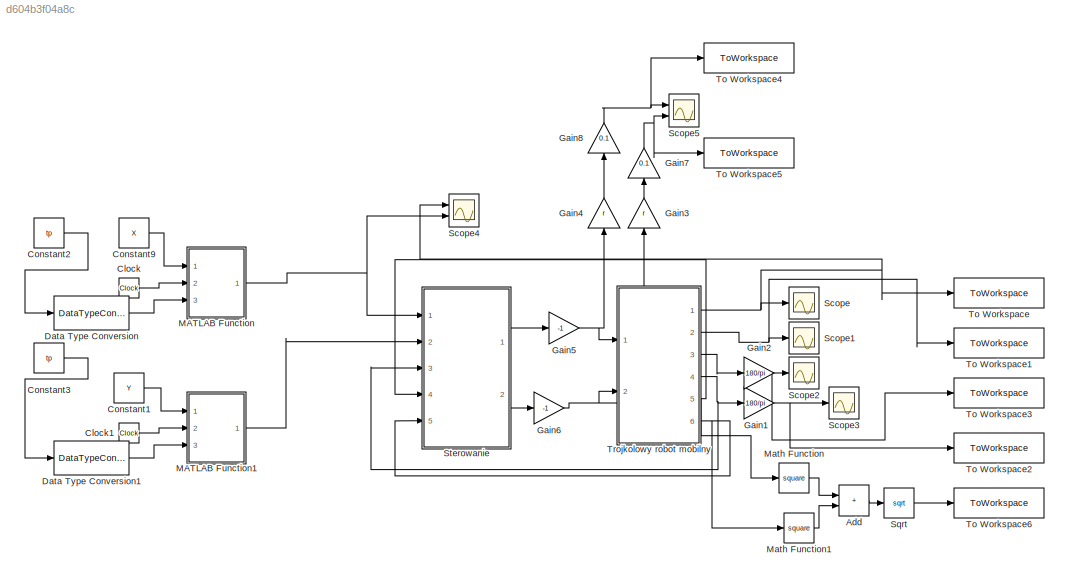
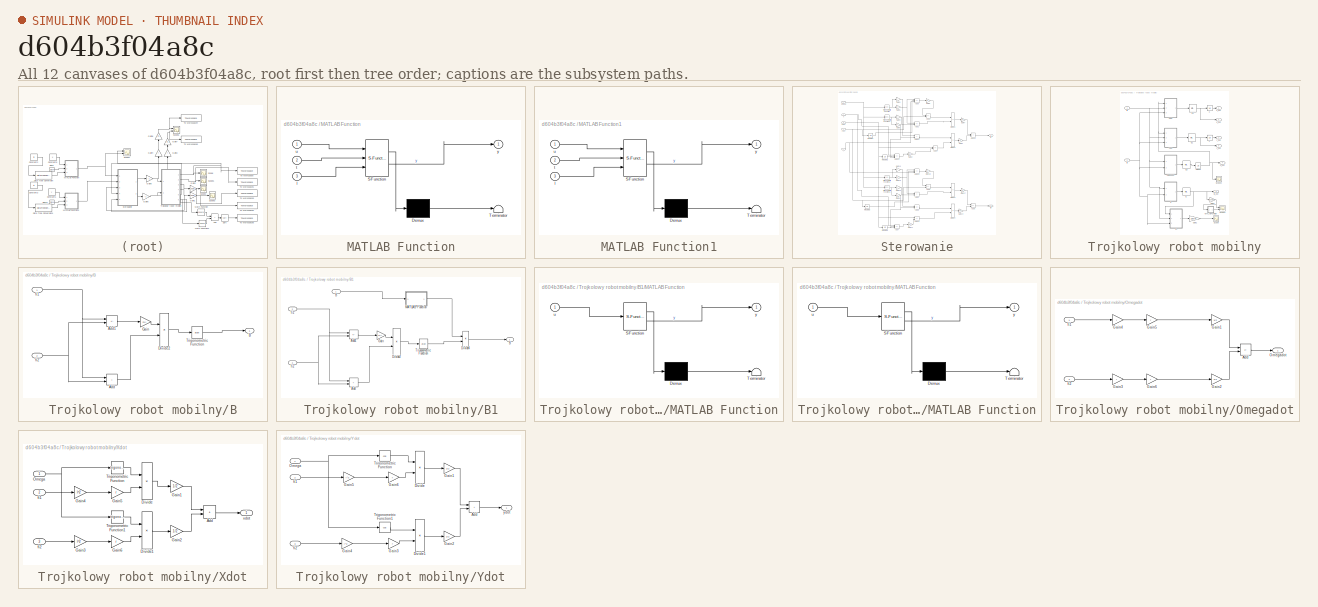
[diagram: thumbnail index - all 12 canvases of the model, root first then tree order]
MODEL slx_d604b3f04a8c
KIND model
CONFIG AbsTol = auto
CONFIG EnableMultiTasking = off
CONFIG FixedStep = auto
CONFIG MaxStep = 0.1
CONFIG MinStep = auto
CONFIG RelTol = 1e-3
CONFIG SampleTimeConstraint = Unconstrained
CONFIG SolverName = ode45
CONFIG StartTime = 0.0
CONFIG StopTime = ts
BLOCK [Sum] Add
  IconShape = rectangular
  Ports = [2, 1]
BLOCK [Clock] Clock
BLOCK [Clock] Clock1
BLOCK [Constant] Constant1
  Value = Y
BLOCK [Constant] Constant2
  Value = tp
BLOCK [Constant] Constant3
  Value = tp
BLOCK [Constant] Constant9
  Value = X
BLOCK [DataTypeConversion] Data Type Conversion
  OutDataTypeStr = int32
  RndMeth = Floor
  SaturateOnIntegerOverflow = off
BLOCK [DataTypeConversion] Data Type Conversion1
  OutDataTypeStr = int32
  RndMeth = Floor
  SaturateOnIntegerOverflow = off
BLOCK [Gain] Gain1
  Gain = 180/pi
BLOCK [Gain] Gain2
  Gain = 180/pi
BLOCK [Gain] Gain3
  Gain = r
  NameLocation = right
BLOCK [Gain] Gain4
  Gain = r
  NameLocation = right
BLOCK [Gain] Gain5
  Gain = -1
BLOCK [Gain] Gain6
  Gain = -1
BLOCK [Gain] Gain7
  Gain = 0.1
  NameLocation = right
BLOCK [Gain] Gain8
  Gain = 0.1
  NameLocation = right
BLOCK [SubSystem] MATLAB Function
  ErrorFcn = Stateflow.Translate.translate
  PermitHierarchicalResolution = ExplicitOnly
  Ports = [3, 1]
  RequestExecContextInheritance = off
  SFBlockType = MATLAB Function
  TreatAsAtomicUnit = on
BLOCK [Demux] MATLAB Function/ Demux 
  Outputs = 1
  Ports = [1, 1]
BLOCK [S-Function] MATLAB Function/ SFunction 
  EnableBusSupport = on
  FunctionName = sf_sfun
  PortCounts = [3 2]
  Ports = [3, 2]
  SFcnIsStateOwnerBlock = off
  SFunctionDeploymentMode = off
  Tag = Stateflow S-Function 2
BLOCK [Terminator] MATLAB Function/ Terminator 
BLOCK [Inport] MATLAB Function/l
  Port = 3
BLOCK [Inport] MATLAB Function/t
  Port = 2
BLOCK [Inport] MATLAB Function/u
BLOCK [Outport] MATLAB Function/y
BLOCK [SubSystem] MATLAB Function1
  ErrorFcn = Stateflow.Translate.translate
  PermitHierarchicalResolution = ExplicitOnly
  Ports = [3, 1]
  RequestExecContextInheritance = off
  SFBlockType = MATLAB Function
  TreatAsAtomicUnit = on
BLOCK [Demux] MATLAB Function1/ Demux 
  Outputs = 1
  Ports = [1, 1]
BLOCK [S-Function] MATLAB Function1/ SFunction 
  EnableBusSupport = on
  FunctionName = sf_sfun
  PortCounts = [3 2]
  Ports = [3, 2]
  SFcnIsStateOwnerBlock = off
  SFunctionDeploymentMode = off
  Tag = Stateflow S-Function 1
BLOCK [Terminator] MATLAB Function1/ Terminator 
BLOCK [Inport] MATLAB Function1/l
  Port = 3
BLOCK [Inport] MATLAB Function1/t
  Port = 2
BLOCK [Inport] MATLAB Function1/u
BLOCK [Outport] MATLAB Function1/y
BLOCK [Math] Math Function
  Operator = square
  Ports = [1, 1]
BLOCK [Math] Math Function1
  Operator = square
  Ports = [1, 1]
BLOCK [Scope] Scope
  Floating = off
  NumInputPorts = 1
  Ports = [1]
  ScopeSpecificationString = Simulink.scopes.TimeScopeBlockCfg('CurrentConfiguration', extmgr.ConfigurationSet(extmgr.Configuration('Core','General UI',true),extmgr.Configuration('Core','Source UI',true),extmgr.Configuration('Sources','WiredSimulink',true),extmgr.Configuration('Visuals','Time Domain',true,'SerializedDisplays',{struct('MinYLimReal','-16.16764','MaxYLimReal','145.50879','YLabelReal','','MinYLimMag','0.00000','M...<+1386ch>
BLOCK [Scope] Scope1
  Floating = off
  NumInputPorts = 1
  Ports = [1]
  ScopeSpecificationString = Simulink.scopes.TimeScopeBlockCfg('CurrentConfiguration', extmgr.ConfigurationSet(extmgr.Configuration('Core','General UI',true),extmgr.Configuration('Core','Source UI',true),extmgr.Configuration('Sources','WiredSimulink',true,'DataLoggingVariableName','ScopeData1'),extmgr.Configuration('Visuals','Time Domain',true,'SerializedDisplays',{struct('MinYLimReal','-13.03744','MaxYLimReal','117.33696','Y...<+1425ch>
BLOCK [Scope] Scope2
  Floating = off
  NumInputPorts = 1
  Ports = [1]
  ScopeSpecificationString = Simulink.scopes.TimeScopeBlockCfg('CurrentConfiguration', extmgr.ConfigurationSet(extmgr.Configuration('Core','General UI',true),extmgr.Configuration('Core','Source UI',true),extmgr.Configuration('Sources','WiredSimulink',true,'DataLoggingVariableName','ScopeData2'),extmgr.Configuration('Visuals','Time Domain',true,'SerializedDisplays',{struct('MinYLimReal','-112.36468','MaxYLimReal','112.4837','Y...<+1445ch>
BLOCK [Scope] Scope3
  Floating = off
  NumInputPorts = 1
  Ports = [1]
  ScopeSpecificationString = Simulink.scopes.TimeScopeBlockCfg('CurrentConfiguration', extmgr.ConfigurationSet(extmgr.Configuration('Core','General UI',true),extmgr.Configuration('Core','Source UI',true),extmgr.Configuration('Sources','WiredSimulink',true,'DataLoggingVariableName','ScopeData3'),extmgr.Configuration('Visuals','Time Domain',true,'SerializedDisplays',{struct('MinYLimReal','-13.40757','MaxYLimReal','68.62185','YL...<+1441ch>
BLOCK [Scope] Scope4
  Floating = off
  NumInputPorts = 2
  Ports = [2]
  ScopeSpecificationString = Simulink.scopes.TimeScopeBlockCfg('CurrentConfiguration', extmgr.ConfigurationSet(extmgr.Configuration('Core','General UI',true),extmgr.Configuration('Core','Source UI',true),extmgr.Configuration('Sources','WiredSimulink',true,'DataLoggingVariableName','ScopeData4'),extmgr.Configuration('Visuals','Time Domain',true,'SerializedDisplays',{struct('MinYLimReal','-16.24961','MaxYLimReal','146.24648','Y...<+1489ch>
BLOCK [Scope] Scope5
  Floating = off
  NumInputPorts = 2
  Ports = [2]
  ScopeSpecificationString = Simulink.scopes.TimeScopeBlockCfg('CurrentConfiguration', extmgr.ConfigurationSet(extmgr.Configuration('Core','General UI',true),extmgr.Configuration('Core','Source UI',true),extmgr.Configuration('Sources','WiredSimulink',true,'DataLoggingVariableName','ScopeData1'),extmgr.Configuration('Visuals','Time Domain',true,'SerializedDisplays',{struct('MinYLimReal','-0.41621','MaxYLimReal','3.59017','YLab...<+1471ch>
BLOCK [Sqrt] Sqrt
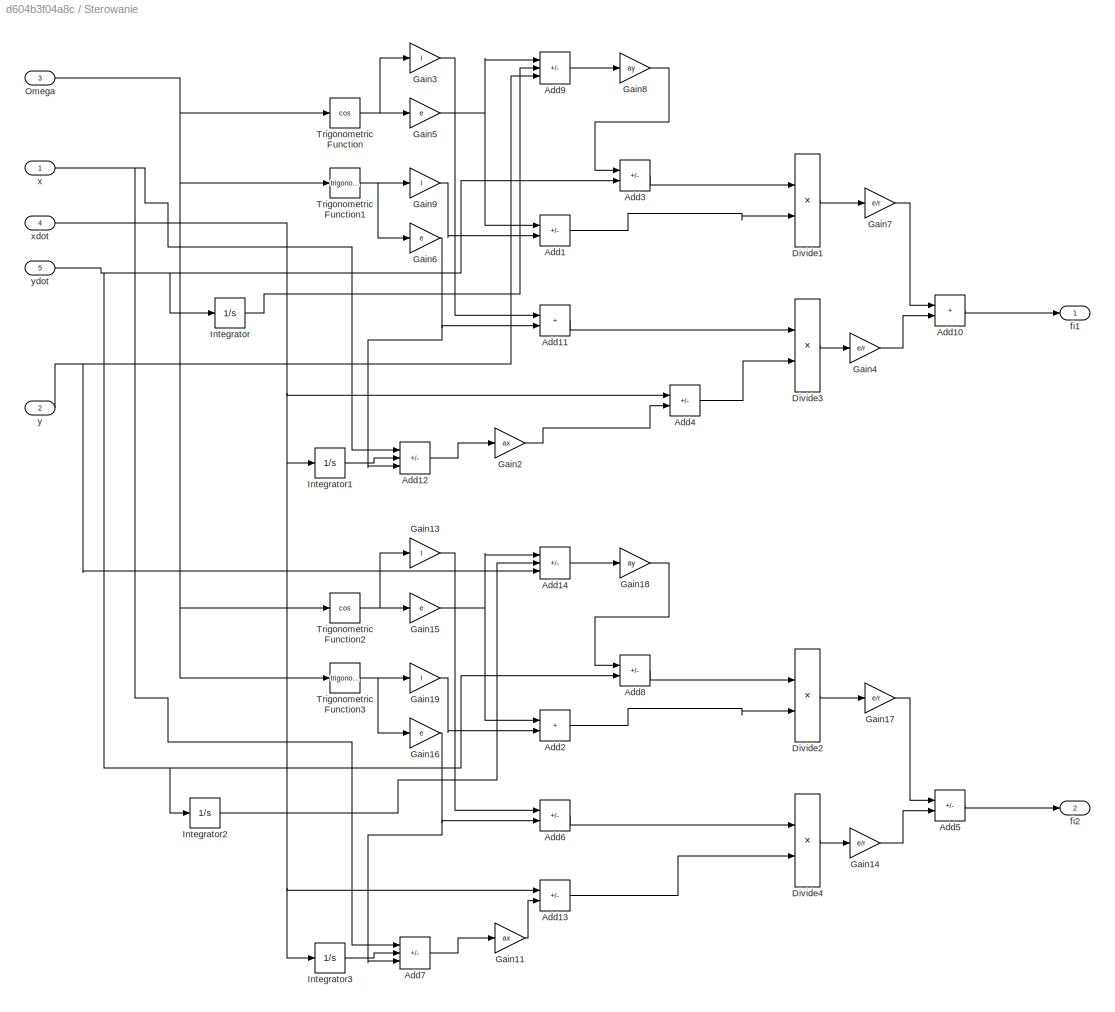
BLOCK [SubSystem] Sterowanie
  Ports = [5, 2]
  RequestExecContextInheritance = off
BLOCK [Sum] Sterowanie/Add1
  IconShape = rectangular
  Inputs = +-
  Ports = [2, 1]
BLOCK [Sum] Sterowanie/Add10
  IconShape = rectangular
  Ports = [2, 1]
BLOCK [Sum] Sterowanie/Add11
  IconShape = rectangular
  Ports = [2, 1]
BLOCK [Sum] Sterowanie/Add12
  IconShape = rectangular
  Inputs = +-+
  Ports = [3, 1]
BLOCK [Sum] Sterowanie/Add13
  IconShape = rectangular
  Inputs = +-
  Ports = [2, 1]
BLOCK [Sum] Sterowanie/Add14
  IconShape = rectangular
  Inputs = +-+
  Ports = [3, 1]
BLOCK [Sum] Sterowanie/Add2
  IconShape = rectangular
  Ports = [2, 1]
BLOCK [Sum] Sterowanie/Add3
  IconShape = rectangular
  Inputs = -+
  Ports = [2, 1]
BLOCK [Sum] Sterowanie/Add4
  IconShape = rectangular
  Inputs = +-
  Ports = [2, 1]
BLOCK [Sum] Sterowanie/Add5
  IconShape = rectangular
  Inputs = +-
  Ports = [2, 1]
BLOCK [Sum] Sterowanie/Add6
  IconShape = rectangular
  Inputs = +-
  Ports = [2, 1]
BLOCK [Sum] Sterowanie/Add7
  IconShape = rectangular
  Inputs = +-+
  Ports = [3, 1]
BLOCK [Sum] Sterowanie/Add8
  IconShape = rectangular
  Inputs = -+
  Ports = [2, 1]
BLOCK [Sum] Sterowanie/Add9
  IconShape = rectangular
  Inputs = +-+
  Ports = [3, 1]
BLOCK [Product] Sterowanie/Divide1
  Inputs = **
  Ports = [2, 1]
BLOCK [Product] Sterowanie/Divide2
  Inputs = **
  Ports = [2, 1]
BLOCK [Product] Sterowanie/Divide3
  Inputs = **
  Ports = [2, 1]
BLOCK [Product] Sterowanie/Divide4
  Inputs = **
  Ports = [2, 1]
BLOCK [Gain] Sterowanie/Gain11
  Gain = ax
BLOCK [Gain] Sterowanie/Gain13
  Gain = l
BLOCK [Gain] Sterowanie/Gain14
  Gain = e/r
BLOCK [Gain] Sterowanie/Gain15
  Gain = e
BLOCK [Gain] Sterowanie/Gain16
  Gain = e
BLOCK [Gain] Sterowanie/Gain17
  Gain = e/r
BLOCK [Gain] Sterowanie/Gain18
  Gain = ay
BLOCK [Gain] Sterowanie/Gain19
  Gain = l
BLOCK [Gain] Sterowanie/Gain2
  Gain = ax
BLOCK [Gain] Sterowanie/Gain3
  Gain = l
BLOCK [Gain] Sterowanie/Gain4
  Gain = e/r
BLOCK [Gain] Sterowanie/Gain5
  Gain = e
BLOCK [Gain] Sterowanie/Gain6
  Gain = e
BLOCK [Gain] Sterowanie/Gain7
  Gain = e/r
BLOCK [Gain] Sterowanie/Gain8
  Gain = ay
BLOCK [Gain] Sterowanie/Gain9
  Gain = l
BLOCK [Integrator] Sterowanie/Integrator
  Ports = [1, 1]
BLOCK [Integrator] Sterowanie/Integrator1
  Ports = [1, 1]
BLOCK [Integrator] Sterowanie/Integrator2
  Ports = [1, 1]
BLOCK [Integrator] Sterowanie/Integrator3
  Ports = [1, 1]
BLOCK [Inport] Sterowanie/Omega
  Port = 3
BLOCK [Trigonometry] Sterowanie/Trigonometric Function
  Operator = cos
  Ports = [1, 1]
BLOCK [Trigonometry] Sterowanie/Trigonometric Function1
  Ports = [1, 1]
BLOCK [Trigonometry] Sterowanie/Trigonometric Function2
  Operator = cos
  Ports = [1, 1]
BLOCK [Trigonometry] Sterowanie/Trigonometric Function3
  Ports = [1, 1]
BLOCK [Outport] Sterowanie/fi1 
BLOCK [Outport] Sterowanie/fi2
  Port = 2
BLOCK [Inport] Sterowanie/x
BLOCK [Inport] Sterowanie/xdot
  Port = 4
BLOCK [Inport] Sterowanie/y 
  Port = 2
BLOCK [Inport] Sterowanie/ydot 
  Port = 5
BLOCK [ToWorkspace] To Workspace
  FixptAsFi = on
  MaxDataPoints = inf
  Ports = [1]
  SampleTime = -1
  Save2DSignal = 2-D array (concatenate along first dimension)
  VariableName = x
BLOCK [ToWorkspace] To Workspace1
  FixptAsFi = on
  MaxDataPoints = inf
  Ports = [1]
  SampleTime = -1
  Save2DSignal = 2-D array (concatenate along first dimension)
  VariableName = y
BLOCK [ToWorkspace] To Workspace2
  FixptAsFi = on
  MaxDataPoints = inf
  Ports = [1]
  SampleTime = -1
  Save2DSignal = 2-D array (concatenate along first dimension)
  VariableName = Omega
BLOCK [ToWorkspace] To Workspace3
  FixptAsFi = on
  MaxDataPoints = inf
  Ports = [1]
  SampleTime = -1
  Save2DSignal = 2-D array (concatenate along first dimension)
  VariableName = fi
BLOCK [ToWorkspace] To Workspace4
  FixptAsFi = on
  MaxDataPoints = inf
  Ports = [1]
  SampleTime = -1
  Save2DSignal = 2-D array (concatenate along first dimension)
  VariableName = w1
BLOCK [ToWorkspace] To Workspace5
  FixptAsFi = on
  MaxDataPoints = inf
  Ports = [1]
  SampleTime = -1
  Save2DSignal = 2-D array (concatenate along first dimension)
  VariableName = w2
BLOCK [ToWorkspace] To Workspace6
  FixptAsFi = on
  MaxDataPoints = inf
  Ports = [1]
  SampleTime = -1
  Save2DSignal = 2-D array (concatenate along first dimension)
  VariableName = velocity
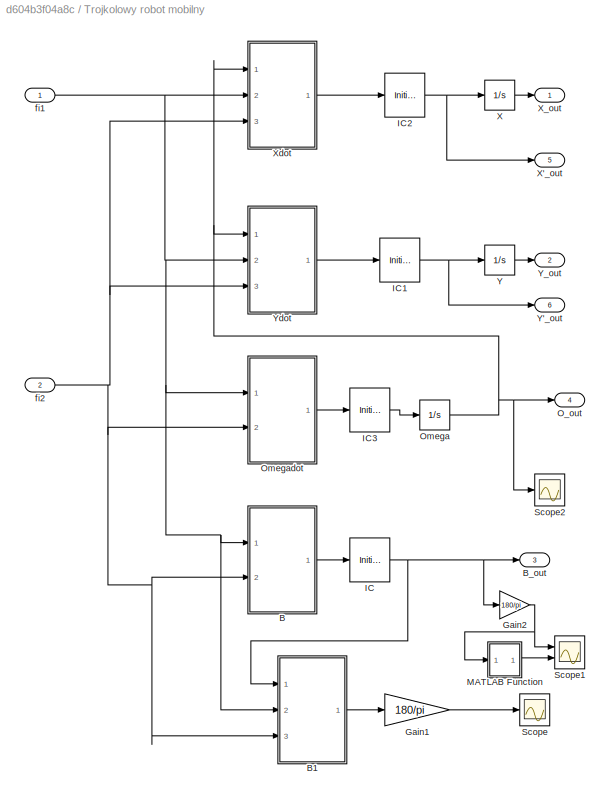
BLOCK [SubSystem] Trojkolowy robot mobilny
  Ports = [2, 6]
  RequestExecContextInheritance = off
BLOCK [SubSystem] Trojkolowy robot mobilny/B
  Ports = [2, 1]
  RequestExecContextInheritance = off
BLOCK [Sum] Trojkolowy robot mobilny/B/Add
  IconShape = rectangular
  Ports = [2, 1]
BLOCK [Sum] Trojkolowy robot mobilny/B/Add1
  IconShape = rectangular
  Inputs = +-
  Ports = [2, 1]
BLOCK [Outport] Trojkolowy robot mobilny/B/B 
BLOCK [Product] Trojkolowy robot mobilny/B/Divide2
  Inputs = */
  Ports = [2, 1]
BLOCK [Gain] Trojkolowy robot mobilny/B/Gain
  Gain = m/l
BLOCK [Trigonometry] Trojkolowy robot mobilny/B/Trigonometric Function
  Operator = atan
  Ports = [1, 1]
BLOCK [Inport] Trojkolowy robot mobilny/B/fi1
BLOCK [Inport] Trojkolowy robot mobilny/B/fi2 
  Port = 2
BLOCK [SubSystem] Trojkolowy robot mobilny/B1
  Ports = [3, 1]
  RequestExecContextInheritance = off
BLOCK [Sum] Trojkolowy robot mobilny/B1/Add
  IconShape = rectangular
  Ports = [2, 1]
BLOCK [Sum] Trojkolowy robot mobilny/B1/Add1
  IconShape = rectangular
  Inputs = +-
  Ports = [2, 1]
BLOCK [Inport] Trojkolowy robot mobilny/B1/B
BLOCK [Outport] Trojkolowy robot mobilny/B1/B 
BLOCK [Product] Trojkolowy robot mobilny/B1/Divide2
  Inputs = */
  Ports = [2, 1]
BLOCK [Product] Trojkolowy robot mobilny/B1/Divide4
  Inputs = **
  Ports = [2, 1]
BLOCK [Gain] Trojkolowy robot mobilny/B1/Gain
  Gain = m/l
BLOCK [SubSystem] Trojkolowy robot mobilny/B1/MATLAB Function
  ErrorFcn = Stateflow.Translate.translate
  PermitHierarchicalResolution = ExplicitOnly
  Ports = [1, 1]
  RequestExecContextInheritance = off
  SFBlockType = MATLAB Function
  TreatAsAtomicUnit = on
BLOCK [Demux] Trojkolowy robot mobilny/B1/MATLAB Function/ Demux 
  Outputs = 1
  Ports = [1, 1]
BLOCK [S-Function] Trojkolowy robot mobilny/B1/MATLAB Function/ SFunction 
  EnableBusSupport = on
  FunctionName = sf_sfun
  PortCounts = [1 2]
  Ports = [1, 2]
  SFcnIsStateOwnerBlock = off
  SFunctionDeploymentMode = off
  Tag = Stateflow S-Function 3
BLOCK [Terminator] Trojkolowy robot mobilny/B1/MATLAB Function/ Terminator 
BLOCK [Inport] Trojkolowy robot mobilny/B1/MATLAB Function/u
BLOCK [Outport] Trojkolowy robot mobilny/B1/MATLAB Function/y
BLOCK [Trigonometry] Trojkolowy robot mobilny/B1/Trigonometric Function
  Operator = atan
  Ports = [1, 1]
BLOCK [Inport] Trojkolowy robot mobilny/B1/fi1
  Port = 2
BLOCK [Inport] Trojkolowy robot mobilny/B1/fi2 
  Port = 3
BLOCK [Outport] Trojkolowy robot mobilny/B_out
  Port = 3
BLOCK [Gain] Trojkolowy robot mobilny/Gain1
  Gain = 180/pi
BLOCK [Gain] Trojkolowy robot mobilny/Gain2
  Gain = 180/pi
BLOCK [InitialCondition] Trojkolowy robot mobilny/IC
  Value = 0
BLOCK [InitialCondition] Trojkolowy robot mobilny/IC1
  Value = 0
BLOCK [InitialCondition] Trojkolowy robot mobilny/IC2
  Value = 0
BLOCK [InitialCondition] Trojkolowy robot mobilny/IC3
  Value = 0
BLOCK [SubSystem] Trojkolowy robot mobilny/MATLAB Function
  ErrorFcn = Stateflow.Translate.translate
  PermitHierarchicalResolution = ExplicitOnly
  Ports = [1, 1]
  RequestExecContextInheritance = off
  SFBlockType = MATLAB Function
  TreatAsAtomicUnit = on
BLOCK [Demux] Trojkolowy robot mobilny/MATLAB Function/ Demux 
  Outputs = 1
  Ports = [1, 1]
BLOCK [S-Function] Trojkolowy robot mobilny/MATLAB Function/ SFunction 
  EnableBusSupport = on
  FunctionName = sf_sfun
  PortCounts = [1 2]
  Ports = [1, 2]
  SFcnIsStateOwnerBlock = off
  SFunctionDeploymentMode = off
  Tag = Stateflow S-Function 4
BLOCK [Terminator] Trojkolowy robot mobilny/MATLAB Function/ Terminator 
BLOCK [Inport] Trojkolowy robot mobilny/MATLAB Function/u
BLOCK [Outport] Trojkolowy robot mobilny/MATLAB Function/y
BLOCK [Outport] Trojkolowy robot mobilny/O_out
  Port = 4
BLOCK [Integrator] Trojkolowy robot mobilny/Omega
  Ports = [1, 1]
BLOCK [SubSystem] Trojkolowy robot mobilny/Omegadot
  Ports = [2, 1]
  RequestExecContextInheritance = off
BLOCK [Sum] Trojkolowy robot mobilny/Omegadot/Add
  IconShape = rectangular
  Inputs = +-
  Ports = [2, 1]
BLOCK [Gain] Trojkolowy robot mobilny/Omegadot/Gain1
  Gain = 1/2
BLOCK [Gain] Trojkolowy robot mobilny/Omegadot/Gain2
  Gain = 1/2
BLOCK [Gain] Trojkolowy robot mobilny/Omegadot/Gain3
  Gain = l
BLOCK [Gain] Trojkolowy robot mobilny/Omegadot/Gain4
  Gain = l
BLOCK [Gain] Trojkolowy robot mobilny/Omegadot/Gain5
  Gain = r
BLOCK [Gain] Trojkolowy robot mobilny/Omegadot/Gain6
  Gain = r
BLOCK [Outport] Trojkolowy robot mobilny/Omegadot/Omegadot 
BLOCK [Inport] Trojkolowy robot mobilny/Omegadot/fi1
BLOCK [Inport] Trojkolowy robot mobilny/Omegadot/fi2 
  Port = 2
BLOCK [Scope] Trojkolowy robot mobilny/Scope
  Floating = off
  NumInputPorts = 1
  Ports = [1]
  ScopeSpecificationString = Simulink.scopes.TimeScopeBlockCfg('CurrentConfiguration', extmgr.ConfigurationSet(extmgr.Configuration('Core','General UI',true),extmgr.Configuration('Core','Source UI',true),extmgr.Configuration('Sources','WiredSimulink',true,'DataLoggingVariableName','ScopeData1'),extmgr.Configuration('Visuals','Time Domain',true,'SerializedDisplays',{struct('MinYLimReal','-17.66719','MaxYLimReal','159.0047','YL...<+1469ch>
BLOCK [Scope] Trojkolowy robot mobilny/Scope1
  Floating = off
  NumInputPorts = 2
  Ports = [2]
  ScopeSpecificationString = Simulink.scopes.TimeScopeBlockCfg('CurrentConfiguration', extmgr.ConfigurationSet(extmgr.Configuration('Core','General UI',true),extmgr.Configuration('Core','Source UI',true),extmgr.Configuration('Sources','WiredSimulink',true,'DataLoggingVariableName','ScopeData2'),extmgr.Configuration('Visuals','Time Domain',true,'SerializedDisplays',{struct('MinYLimReal','-112.46076','MaxYLimReal','101.14632','...<+1468ch>
BLOCK [Scope] Trojkolowy robot mobilny/Scope2
  Floating = off
  NumInputPorts = 1
  Ports = [1]
  ScopeSpecificationString = Simulink.scopes.TimeScopeBlockCfg('CurrentConfiguration', extmgr.ConfigurationSet(extmgr.Configuration('Core','General UI',true),extmgr.Configuration('Core','Source UI',true),extmgr.Configuration('Sources','WiredSimulink',true,'DataLoggingVariableName','ScopeData4'),extmgr.Configuration('Visuals','Time Domain',true,'SerializedDisplays',{struct('MinYLimReal','-0.37471','MaxYLimReal','3.37236','YLab...<+1463ch>
BLOCK [Integrator] Trojkolowy robot mobilny/X
  Ports = [1, 1]
BLOCK [Outport] Trojkolowy robot mobilny/X'_out
  Port = 5
BLOCK [Outport] Trojkolowy robot mobilny/X_out
BLOCK [SubSystem] Trojkolowy robot mobilny/Xdot
  Ports = [3, 1]
  RequestExecContextInheritance = off
BLOCK [Sum] Trojkolowy robot mobilny/Xdot/Add
  IconShape = rectangular
  Ports = [2, 1]
BLOCK [Product] Trojkolowy robot mobilny/Xdot/Divide
  Inputs = **
  Ports = [2, 1]
BLOCK [Product] Trojkolowy robot mobilny/Xdot/Divide1
  Inputs = **
  Ports = [2, 1]
BLOCK [Gain] Trojkolowy robot mobilny/Xdot/Gain1
  Gain = 1/2
BLOCK [Gain] Trojkolowy robot mobilny/Xdot/Gain2
  Gain = 1/2
BLOCK [Gain] Trojkolowy robot mobilny/Xdot/Gain3
  Gain = l^2
BLOCK [Gain] Trojkolowy robot mobilny/Xdot/Gain4
  Gain = l^2
BLOCK [Gain] Trojkolowy robot mobilny/Xdot/Gain5
  Gain = r
BLOCK [Gain] Trojkolowy robot mobilny/Xdot/Gain6
  Gain = r
BLOCK [Inport] Trojkolowy robot mobilny/Xdot/Omega
BLOCK [Trigonometry] Trojkolowy robot mobilny/Xdot/Trigonometric Function
  Ports = [1, 1]
BLOCK [Trigonometry] Trojkolowy robot mobilny/Xdot/Trigonometric Function1
  Ports = [1, 1]
BLOCK [Inport] Trojkolowy robot mobilny/Xdot/fi1
  Port = 2
BLOCK [Inport] Trojkolowy robot mobilny/Xdot/fi2 
  Port = 3
BLOCK [Outport] Trojkolowy robot mobilny/Xdot/xdot 
BLOCK [Integrator] Trojkolowy robot mobilny/Y
  Ports = [1, 1]
BLOCK [Outport] Trojkolowy robot mobilny/Y'_out
  Port = 6
BLOCK [Outport] Trojkolowy robot mobilny/Y_out
  Port = 2
BLOCK [SubSystem] Trojkolowy robot mobilny/Ydot
  Ports = [3, 1]
  RequestExecContextInheritance = off
BLOCK [Sum] Trojkolowy robot mobilny/Ydot/Add
  IconShape = rectangular
  Ports = [2, 1]
BLOCK [Product] Trojkolowy robot mobilny/Ydot/Divide
  Inputs = **
  Ports = [2, 1]
BLOCK [Product] Trojkolowy robot mobilny/Ydot/Divide1
  Inputs = **
  Ports = [2, 1]
BLOCK [Gain] Trojkolowy robot mobilny/Ydot/Gain1
  Gain = 1/2
BLOCK [Gain] Trojkolowy robot mobilny/Ydot/Gain2
  Gain = 1/2
BLOCK [Gain] Trojkolowy robot mobilny/Ydot/Gain3
  Gain = r
BLOCK [Gain] Trojkolowy robot mobilny/Ydot/Gain4
  Gain = l^2
BLOCK [Gain] Trojkolowy robot mobilny/Ydot/Gain5
  Gain = l^2
BLOCK [Gain] Trojkolowy robot mobilny/Ydot/Gain6
  Gain = r
BLOCK [Inport] Trojkolowy robot mobilny/Ydot/Omega
BLOCK [Trigonometry] Trojkolowy robot mobilny/Ydot/Trigonometric Function
  Operator = cos
  Ports = [1, 1]
BLOCK [Trigonometry] Trojkolowy robot mobilny/Ydot/Trigonometric Function1
  Operator = cos
  Ports = [1, 1]
BLOCK [Inport] Trojkolowy robot mobilny/Ydot/fi1
  Port = 2
BLOCK [Inport] Trojkolowy robot mobilny/Ydot/fi2 
  Port = 3
BLOCK [Outport] Trojkolowy robot mobilny/Ydot/ydot 
BLOCK [Inport] Trojkolowy robot mobilny/fi1
BLOCK [Inport] Trojkolowy robot mobilny/fi2 
  Port = 2
LINE Add:1 -> Sqrt:1
LINE Clock1:1 -> MATLAB Function1:2
LINE Clock:1 -> MATLAB Function:2
LINE Constant1:1 -> MATLAB Function1:1
LINE Constant2:1 -> Data Type Conversion:1
LINE Constant3:1 -> Data Type Conversion1:1
LINE Constant9:1 -> MATLAB Function:1
LINE Data Type Conversion1:1 -> MATLAB Function1:3
LINE Data Type Conversion:1 -> MATLAB Function:3
NET Gain1:1 -> Scope3:1, To Workspace2:1
NET Gain2:1 -> Scope2:1, To Workspace3:1
LINE Gain3:1 -> Gain7:1
LINE Gain4:1 -> Gain8:1
NET Gain5:1 -> Gain4:1, Trojkolowy robot mobilny:1
NET Gain6:1 -> Gain3:1, Trojkolowy robot mobilny:2
NET Gain7:1 -> Scope5:2, To Workspace5:1
NET Gain8:1 -> Scope5:1, To Workspace4:1
LINE MATLAB Function1:1 -> Sterowanie:2
NET MATLAB Function:1 -> Scope4:2, Sterowanie:1
LINE Math Function1:1 -> Add:2
LINE Math Function:1 -> Add:1
LINE Sqrt:1 -> To Workspace6:1
LINE Sterowanie/Add10:1 -> Sterowanie/fi1 :1
LINE Sterowanie/Add11:1 -> Sterowanie/Divide3:1
LINE Sterowanie/Add12:1 -> Sterowanie/Gain2:1
LINE Sterowanie/Add13:1 -> Sterowanie/Divide4:2
LINE Sterowanie/Add14:1 -> Sterowanie/Gain18:1
LINE Sterowanie/Add1:1 -> Sterowanie/Divide1:2
LINE Sterowanie/Add2:1 -> Sterowanie/Divide2:2
LINE Sterowanie/Add3:1 -> Sterowanie/Divide1:1
LINE Sterowanie/Add4:1 -> Sterowanie/Divide3:2
LINE Sterowanie/Add5:1 -> Sterowanie/fi2:1
LINE Sterowanie/Add6:1 -> Sterowanie/Divide4:1
LINE Sterowanie/Add7:1 -> Sterowanie/Gain11:1
LINE Sterowanie/Add8:1 -> Sterowanie/Divide2:1
LINE Sterowanie/Add9:1 -> Sterowanie/Gain8:1
LINE Sterowanie/Divide1:1 -> Sterowanie/Gain7:1
LINE Sterowanie/Divide2:1 -> Sterowanie/Gain17:1
LINE Sterowanie/Divide3:1 -> Sterowanie/Gain4:1
LINE Sterowanie/Divide4:1 -> Sterowanie/Gain14:1
LINE Sterowanie/Gain11:1 -> Sterowanie/Add13:2
LINE Sterowanie/Gain13:1 -> Sterowanie/Add6:1
LINE Sterowanie/Gain14:1 -> Sterowanie/Add5:2
NET Sterowanie/Gain15:1 -> Sterowanie/Add14:1, Sterowanie/Add2:1
NET Sterowanie/Gain16:1 -> Sterowanie/Add6:2, Sterowanie/Add7:3
LINE Sterowanie/Gain17:1 -> Sterowanie/Add5:1
LINE Sterowanie/Gain18:1 -> Sterowanie/Add8:1
LINE Sterowanie/Gain19:1 -> Sterowanie/Add2:2
LINE Sterowanie/Gain2:1 -> Sterowanie/Add4:2
LINE Sterowanie/Gain3:1 -> Sterowanie/Add11:1
LINE Sterowanie/Gain4:1 -> Sterowanie/Add10:2
NET Sterowanie/Gain5:1 -> Sterowanie/Add1:1, Sterowanie/Add9:1
NET Sterowanie/Gain6:1 -> Sterowanie/Add11:2, Sterowanie/Add12:3
LINE Sterowanie/Gain7:1 -> Sterowanie/Add10:1
LINE Sterowanie/Gain8:1 -> Sterowanie/Add3:1
LINE Sterowanie/Gain9:1 -> Sterowanie/Add1:2
LINE Sterowanie/Integrator1:1 -> Sterowanie/Add12:2
LINE Sterowanie/Integrator2:1 -> Sterowanie/Add14:2
LINE Sterowanie/Integrator3:1 -> Sterowanie/Add7:2
LINE Sterowanie/Integrator:1 -> Sterowanie/Add9:2
NET Sterowanie/Omega:1 -> Sterowanie/Trigonometric Function1:1, Sterowanie/Trigonometric Function2:1, Sterowanie/Trigonometric Function3:1, Sterowanie/Trigonometric Function:1
NET Sterowanie/Trigonometric Function1:1 -> Sterowanie/Gain6:1, Sterowanie/Gain9:1
NET Sterowanie/Trigonometric Function2:1 -> Sterowanie/Gain13:1, Sterowanie/Gain15:1
NET Sterowanie/Trigonometric Function3:1 -> Sterowanie/Gain16:1, Sterowanie/Gain19:1
NET Sterowanie/Trigonometric Function:1 -> Sterowanie/Gain3:1, Sterowanie/Gain5:1
NET Sterowanie/x:1 -> Sterowanie/Add12:1, Sterowanie/Add7:1
NET Sterowanie/xdot:1 -> Sterowanie/Add13:1, Sterowanie/Add4:1, Sterowanie/Integrator1:1, Sterowanie/Integrator3:1
NET Sterowanie/y :1 -> Sterowanie/Add14:3, Sterowanie/Add9:3
NET Sterowanie/ydot :1 -> Sterowanie/Add3:2, Sterowanie/Add8:2, Sterowanie/Integrator2:1, Sterowanie/Integrator:1
LINE Sterowanie:1 -> Gain5:1
LINE Sterowanie:2 -> Gain6:1
LINE Trojkolowy robot mobilny/B/Add1:1 -> Trojkolowy robot mobilny/B/Gain:1
LINE Trojkolowy robot mobilny/B/Add:1 -> Trojkolowy robot mobilny/B/Divide2:2
LINE Trojkolowy robot mobilny/B/Divide2:1 -> Trojkolowy robot mobilny/B/Trigonometric Function:1
LINE Trojkolowy robot mobilny/B/Gain:1 -> Trojkolowy robot mobilny/B/Divide2:1
LINE Trojkolowy robot mobilny/B/Trigonometric Function:1 -> Trojkolowy robot mobilny/B/B :1
NET Trojkolowy robot mobilny/B/fi1:1 -> Trojkolowy robot mobilny/B/Add1:1, Trojkolowy robot mobilny/B/Add:1
NET Trojkolowy robot mobilny/B/fi2 :1 -> Trojkolowy robot mobilny/B/Add1:2, Trojkolowy robot mobilny/B/Add:2
LINE Trojkolowy robot mobilny/B1/Add1:1 -> Trojkolowy robot mobilny/B1/Gain:1
LINE Trojkolowy robot mobilny/B1/Add:1 -> Trojkolowy robot mobilny/B1/Divide2:2
LINE Trojkolowy robot mobilny/B1/B:1 -> Trojkolowy robot mobilny/B1/MATLAB Function:1
LINE Trojkolowy robot mobilny/B1/Divide2:1 -> Trojkolowy robot mobilny/B1/Trigonometric Function:1
LINE Trojkolowy robot mobilny/B1/Divide4:1 -> Trojkolowy robot mobilny/B1/B :1
LINE Trojkolowy robot mobilny/B1/Gain:1 -> Trojkolowy robot mobilny/B1/Divide2:1
LINE Trojkolowy robot mobilny/B1/MATLAB Function:1 -> Trojkolowy robot mobilny/B1/Divide4:1
LINE Trojkolowy robot mobilny/B1/Trigonometric Function:1 -> Trojkolowy robot mobilny/B1/Divide4:2
NET Trojkolowy robot mobilny/B1/fi1:1 -> Trojkolowy robot mobilny/B1/Add1:1, Trojkolowy robot mobilny/B1/Add:1
NET Trojkolowy robot mobilny/B1/fi2 :1 -> Trojkolowy robot mobilny/B1/Add1:2, Trojkolowy robot mobilny/B1/Add:2
LINE Trojkolowy robot mobilny/B1:1 -> Trojkolowy robot mobilny/Gain1:1
LINE Trojkolowy robot mobilny/B:1 -> Trojkolowy robot mobilny/IC:1
LINE Trojkolowy robot mobilny/Gain1:1 -> Trojkolowy robot mobilny/Scope:1
NET Trojkolowy robot mobilny/Gain2:1 -> Trojkolowy robot mobilny/MATLAB Function:1, Trojkolowy robot mobilny/Scope1:1
NET Trojkolowy robot mobilny/IC1:1 -> Trojkolowy robot mobilny/Y'_out:1, Trojkolowy robot mobilny/Y:1
NET Trojkolowy robot mobilny/IC2:1 -> Trojkolowy robot mobilny/X'_out:1, Trojkolowy robot mobilny/X:1
LINE Trojkolowy robot mobilny/IC3:1 -> Trojkolowy robot mobilny/Omega:1
NET Trojkolowy robot mobilny/IC:1 -> Trojkolowy robot mobilny/B1:1, Trojkolowy robot mobilny/B_out:1, Trojkolowy robot mobilny/Gain2:1
LINE Trojkolowy robot mobilny/MATLAB Function:1 -> Trojkolowy robot mobilny/Scope1:2
NET Trojkolowy robot mobilny/Omega:1 -> Trojkolowy robot mobilny/O_out:1, Trojkolowy robot mobilny/Scope2:1, Trojkolowy robot mobilny/Xdot:1, Trojkolowy robot mobilny/Ydot:1
LINE Trojkolowy robot mobilny/Omegadot/Add:1 -> Trojkolowy robot mobilny/Omegadot/Omegadot :1
LINE Trojkolowy robot mobilny/Omegadot/Gain1:1 -> Trojkolowy robot mobilny/Omegadot/Add:1
LINE Trojkolowy robot mobilny/Omegadot/Gain2:1 -> Trojkolowy robot mobilny/Omegadot/Add:2
LINE Trojkolowy robot mobilny/Omegadot/Gain3:1 -> Trojkolowy robot mobilny/Omegadot/Gain6:1
LINE Trojkolowy robot mobilny/Omegadot/Gain4:1 -> Trojkolowy robot mobilny/Omegadot/Gain5:1
LINE Trojkolowy robot mobilny/Omegadot/Gain5:1 -> Trojkolowy robot mobilny/Omegadot/Gain1:1
LINE Trojkolowy robot mobilny/Omegadot/Gain6:1 -> Trojkolowy robot mobilny/Omegadot/Gain2:1
LINE Trojkolowy robot mobilny/Omegadot/fi1:1 -> Trojkolowy robot mobilny/Omegadot/Gain4:1
LINE Trojkolowy robot mobilny/Omegadot/fi2 :1 -> Trojkolowy robot mobilny/Omegadot/Gain3:1
LINE Trojkolowy robot mobilny/Omegadot:1 -> Trojkolowy robot mobilny/IC3:1
LINE Trojkolowy robot mobilny/X:1 -> Trojkolowy robot mobilny/X_out:1
LINE Trojkolowy robot mobilny/Xdot/Add:1 -> Trojkolowy robot mobilny/Xdot/xdot :1
LINE Trojkolowy robot mobilny/Xdot/Divide1:1 -> Trojkolowy robot mobilny/Xdot/Gain2:1
LINE Trojkolowy robot mobilny/Xdot/Divide:1 -> Trojkolowy robot mobilny/Xdot/Gain1:1
LINE Trojkolowy robot mobilny/Xdot/Gain1:1 -> Trojkolowy robot mobilny/Xdot/Add:1
LINE Trojkolowy robot mobilny/Xdot/Gain2:1 -> Trojkolowy robot mobilny/Xdot/Add:2
LINE Trojkolowy robot mobilny/Xdot/Gain3:1 -> Trojkolowy robot mobilny/Xdot/Gain6:1
LINE Trojkolowy robot mobilny/Xdot/Gain4:1 -> Trojkolowy robot mobilny/Xdot/Gain5:1
LINE Trojkolowy robot mobilny/Xdot/Gain5:1 -> Trojkolowy robot mobilny/Xdot/Divide:2
LINE Trojkolowy robot mobilny/Xdot/Gain6:1 -> Trojkolowy robot mobilny/Xdot/Divide1:2
NET Trojkolowy robot mobilny/Xdot/Omega:1 -> Trojkolowy robot mobilny/Xdot/Trigonometric Function1:1, Trojkolowy robot mobilny/Xdot/Trigonometric Function:1
LINE Trojkolowy robot mobilny/Xdot/Trigonometric Function1:1 -> Trojkolowy robot mobilny/Xdot/Divide1:1
LINE Trojkolowy robot mobilny/Xdot/Trigonometric Function:1 -> Trojkolowy robot mobilny/Xdot/Divide:1
LINE Trojkolowy robot mobilny/Xdot/fi1:1 -> Trojkolowy robot mobilny/Xdot/Gain4:1
LINE Trojkolowy robot mobilny/Xdot/fi2 :1 -> Trojkolowy robot mobilny/Xdot/Gain3:1
LINE Trojkolowy robot mobilny/Xdot:1 -> Trojkolowy robot mobilny/IC2:1
LINE Trojkolowy robot mobilny/Y:1 -> Trojkolowy robot mobilny/Y_out:1
LINE Trojkolowy robot mobilny/Ydot/Add:1 -> Trojkolowy robot mobilny/Ydot/ydot :1
LINE Trojkolowy robot mobilny/Ydot/Divide1:1 -> Trojkolowy robot mobilny/Ydot/Gain2:1
LINE Trojkolowy robot mobilny/Ydot/Divide:1 -> Trojkolowy robot mobilny/Ydot/Gain1:1
LINE Trojkolowy robot mobilny/Ydot/Gain1:1 -> Trojkolowy robot mobilny/Ydot/Add:1
LINE Trojkolowy robot mobilny/Ydot/Gain2:1 -> Trojkolowy robot mobilny/Ydot/Add:2
LINE Trojkolowy robot mobilny/Ydot/Gain3:1 -> Trojkolowy robot mobilny/Ydot/Divide1:2
LINE Trojkolowy robot mobilny/Ydot/Gain4:1 -> Trojkolowy robot mobilny/Ydot/Gain3:1
LINE Trojkolowy robot mobilny/Ydot/Gain5:1 -> Trojkolowy robot mobilny/Ydot/Gain6:1
LINE Trojkolowy robot mobilny/Ydot/Gain6:1 -> Trojkolowy robot mobilny/Ydot/Divide:2
NET Trojkolowy robot mobilny/Ydot/Omega:1 -> Trojkolowy robot mobilny/Ydot/Trigonometric Function1:1, Trojkolowy robot mobilny/Ydot/Trigonometric Function:1
LINE Trojkolowy robot mobilny/Ydot/Trigonometric Function1:1 -> Trojkolowy robot mobilny/Ydot/Divide1:1
LINE Trojkolowy robot mobilny/Ydot/Trigonometric Function:1 -> Trojkolowy robot mobilny/Ydot/Divide:1
LINE Trojkolowy robot mobilny/Ydot/fi1:1 -> Trojkolowy robot mobilny/Ydot/Gain5:1
LINE Trojkolowy robot mobilny/Ydot/fi2 :1 -> Trojkolowy robot mobilny/Ydot/Gain4:1
LINE Trojkolowy robot mobilny/Ydot:1 -> Trojkolowy robot mobilny/IC1:1
NET Trojkolowy robot mobilny/fi1:1 -> Trojkolowy robot mobilny/B1:2, Trojkolowy robot mobilny/B:1, Trojkolowy robot mobilny/Omegadot:1, Trojkolowy robot mobilny/Xdot:2, Trojkolowy robot mobilny/Ydot:2
NET Trojkolowy robot mobilny/fi2 :1 -> Trojkolowy robot mobilny/B1:3, Trojkolowy robot mobilny/B:2, Trojkolowy robot mobilny/Omegadot:2, Trojkolowy robot mobilny/Xdot:3, Trojkolowy robot mobilny/Ydot:3
NET Trojkolowy robot mobilny:1 -> Scope4:1, Scope:1, To Workspace:1
NET Trojkolowy robot mobilny:2 -> Scope1:1, To Workspace1:1
LINE Trojkolowy robot mobilny:3 -> Gain2:1
NET Trojkolowy robot mobilny:4 -> Gain1:1, Sterowanie:3
NET Trojkolowy robot mobilny:5 -> Math Function:1, Sterowanie:4
NET Trojkolowy robot mobilny:6 -> Math Function1:1, Sterowanie:5
note: NET lines group one-source signal fan-out (src -> all destinations, sorted); 1:1 wires keep LINE
CHART MATLAB Function states=1 transitions=1
  STATE_LABEL 'eML_blk_kernel()'
  STATE_LABEL 'SCRIPT:\nfunction y = fcn(u,t,l)\n\n\nif l >= int32(t*10+1)\n\n    x = u(int32(t*10+1));\n    \nelse\n    \n   x =u(end);\nend\ny = x;\n'
CHART Trojkolowy robot mobilny/B1/MATLAB Function states=1 transitions=1
  STATE_LABEL 'eML_blk_kernel()'
  STATE_LABEL 'SCRIPT:\nfunction y = fcn(u)\ny = sign(u);\ny = u;\n'
CHART Trojkolowy robot mobilny/MATLAB Function states=1 transitions=1
  STATE_LABEL 'eML_blk_kernel()'
  STATE_LABEL 'SCRIPT:\nfunction y = fcn(u)\nwindowSize = 5; \nb = (1/windowSize)*ones(1,windowSize);\na = 0.5;\nk = filter(b,a,u);\ny = k;\n'
CHART MATLAB Function1 states=1 transitions=1
  STATE_LABEL 'eML_blk_kernel()'
  STATE_LABEL 'SCRIPT:\nfunction y = fcn(u,t,l)\n \nif l >= int32(t*10+1)\n\n    x = u(int32(t*10+1));\n    \nelse\n    \n   x =u(end);\nend\ny = x;\n'
CHART  states=0 transitions=0
CHART  states=0 transitions=0
CHART  states=0 transitions=0
CHART  states=0 transitions=0
